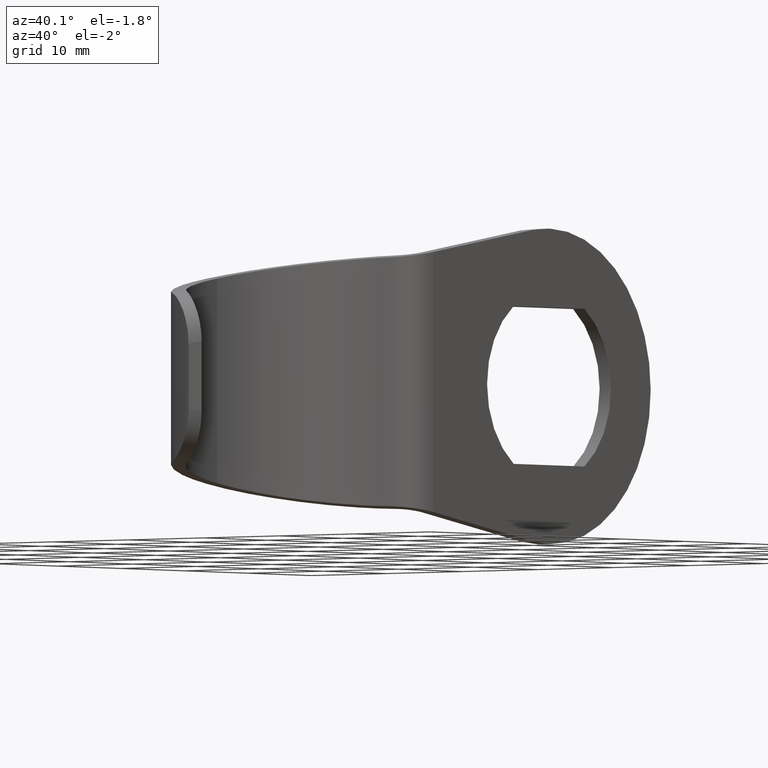
[diagram: clean part render]
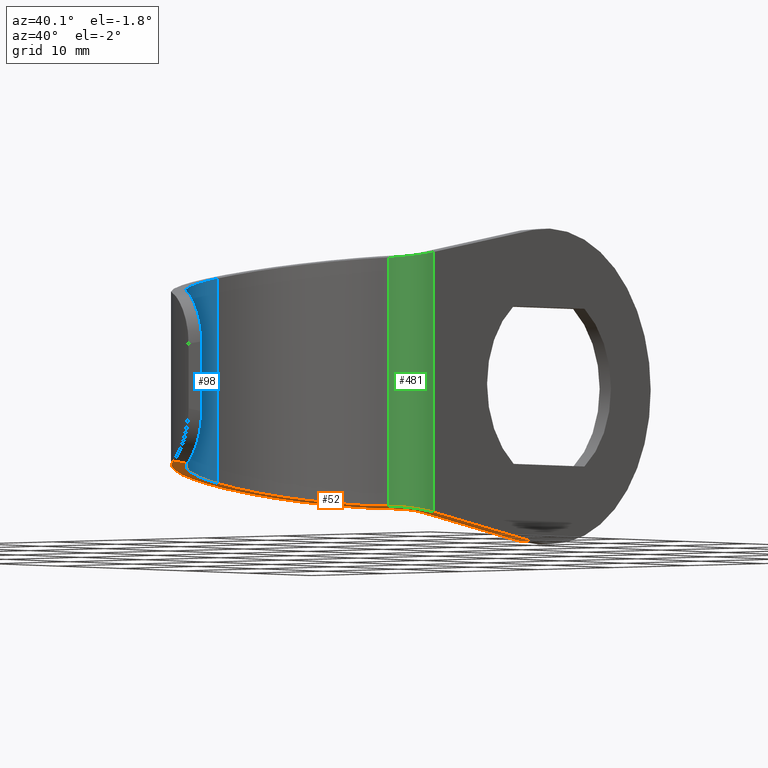
[diagram: same view with three faces highlighted in distinct colors, each labeled with its STEP entity id]
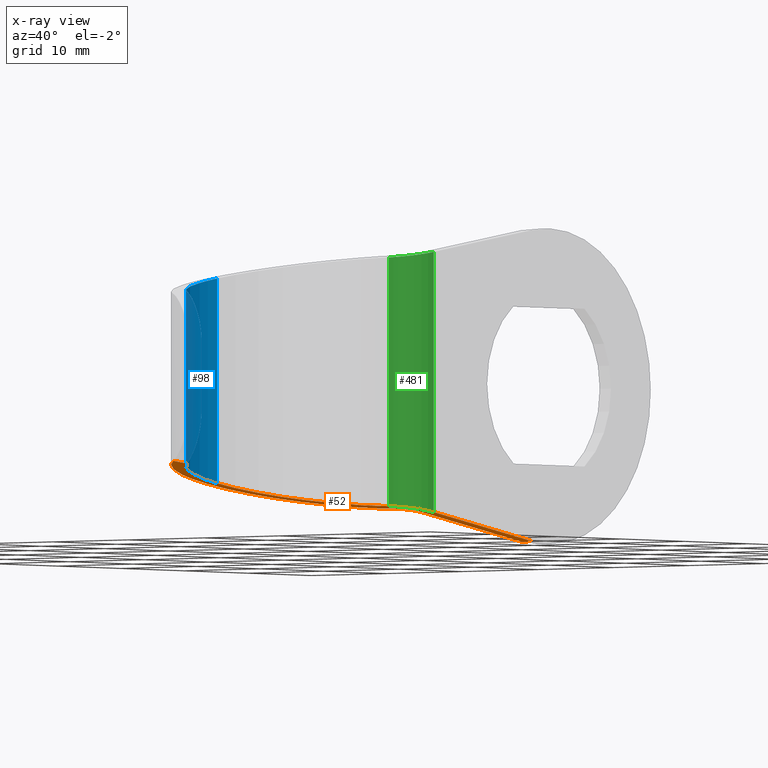
[diagram: x-ray of the same camera — body ghosted, the three highlighted faces saturated]
A machine part, auxiliary view with three faces highlighted in distinct colors.
The next image is the same camera in x-ray (body ghosted, the three faces saturated) — at least one of them is partly hidden behind the body in this view.
Their STEP definitions:

[orange] entity #52 — the highlighted planar face has unit normal (0, -0.1645, -0.9864).
#1 = VECTOR ( 'NONE', #688, 1000.000000000000000 ) ;
#4 = EDGE_CURVE ( 'NONE', #697, #576, #669, .T. ) ;
#12 = EDGE_LOOP ( 'NONE', ( #106, #665, #208, #408, #484, #337, #42, #143, #102, #590 ) ) ;
#27 = CARTESIAN_POINT ( 'NONE',  ( -1.984335818890923700, 13.35336710553417200, -12.61000297431061100 ) ) ;
#35 = CARTESIAN_POINT ( 'NONE',  ( -8.920456233523886200, 12.32264638362781300, -12.43805731057212300 ) ) ;
#40 = CARTESIAN_POINT ( 'NONE',  ( -11.31845518809903500, -15.70927592412958300, -7.761749379013025400 ) ) ;
#41 = CARTESIAN_POINT ( 'NONE',  ( -15.00000000000002500, 0.0000000000000000000, -10.38238348310827800 ) ) ;
#42 = ORIENTED_EDGE ( 'NONE', *, *, #703, .T. ) ;
#47 = CARTESIAN_POINT ( 'NONE',  ( -1.984335818890923700, 13.35336710553417200, -12.61000297431061100 ) ) ;
#52 = ADVANCED_FACE ( 'NONE', ( #608 ), #446, .T. ) ;
#57 =( BOUNDED_CURVE ( )  B_SPLINE_CURVE ( 3, ( #156, #392, #658, #27 ),
 .UNSPECIFIED., .F., .T. ) 
 B_SPLINE_CURVE_WITH_KNOTS ( ( 4, 4 ),
 ( 1.570796326794895700, 2.994070313583864000 ),
 .UNSPECIFIED. ) 
 CURVE ( )  GEOMETRIC_REPRESENTATION_ITEM ( )  RATIONAL_B_SPLINE_CURVE ( ( 1.000000000000000000, 0.8381958751871453300, 0.8381958751871453300, 1.000000000000000000 ) ) 
 REPRESENTATION_ITEM ( '' )  );
#89 = DIRECTION ( 'NONE',  ( 0.0000000000000000000, 0.9863692575464607600, -0.1645469166142101700 ) ) ;
#90 = EDGE_CURVE ( 'NONE', #261, #297, #142, .T. ) ;
#91 = LINE ( 'NONE', #644, #687 ) ;
#102 = ORIENTED_EDGE ( 'NONE', *, *, #364, .T. ) ;
#104 = CARTESIAN_POINT ( 'NONE',  ( -15.00000000000002500, 0.0000000000000000000, -10.38238348310827800 ) ) ;
#106 = ORIENTED_EDGE ( 'NONE', *, *, #4, .F. ) ;
#108 = CARTESIAN_POINT ( 'NONE',  ( -15.00000000000002300, 32.36721305702062100, -15.78190812074337000 ) ) ;
#111 =( BOUNDED_CURVE ( )  B_SPLINE_CURVE ( 3, ( #660, #611, #215, #616 ),
 .UNSPECIFIED., .F., .F. ) 
 B_SPLINE_CURVE_WITH_KNOTS ( ( 4, 4 ),
 ( 1.570796326794896600, 2.993998548937665900 ),
 .UNSPECIFIED. ) 
 CURVE ( )  GEOMETRIC_REPRESENTATION_ITEM ( )  RATIONAL_B_SPLINE_CURVE ( ( 1.000000000000000000, 0.8382114974115488800, 0.8382114974115488800, 1.000000000000000000 ) ) 
 REPRESENTATION_ITEM ( '' )  );
#113 = LINE ( 'NONE', #40, #423 ) ;
#142 =( BOUNDED_CURVE ( )  B_SPLINE_CURVE ( 3, ( #456, #620, #186, #104 ),
 .UNSPECIFIED., .F., .F. ) 
 B_SPLINE_CURVE_WITH_KNOTS ( ( 4, 4 ),
 ( 3.839370375923106600, 4.712388980384689700 ),
 .UNSPECIFIED. ) 
 CURVE ( )  GEOMETRIC_REPRESENTATION_ITEM ( )  RATIONAL_B_SPLINE_CURVE ( ( 1.000000000000000000, 0.9374886493068308500, 0.9374886493068308500, 1.000000000000000000 ) ) 
 REPRESENTATION_ITEM ( '' )  );
#143 = ORIENTED_EDGE ( 'NONE', *, *, #383, .F. ) ;
#150 = EDGE_CURVE ( 'NONE', #318, #308, #91, .T. ) ;
#153 = DIRECTION ( 'NONE',  ( 0.0000000000000000000, 0.9863692575464607600, -0.1645469166142101700 ) ) ;
#156 = CARTESIAN_POINT ( 'NONE',  ( 1.001206748977360400, 16.81535115381116800, -13.18753395082193900 ) ) ;
#159 = CARTESIAN_POINT ( 'NONE',  ( -2.205882338001806900, 14.83691622645664400, -12.85748983749685300 ) ) ;
#162 = CARTESIAN_POINT ( 'NONE',  ( -11.92602822276886900, -7.419471597220776500, -9.144661235695387800 ) ) ;
#165 = CARTESIAN_POINT ( 'NONE',  ( -0.4999999830687073000, 32.36721305702062100, -15.78190812074337000 ) ) ;
#186 = CARTESIAN_POINT ( 'NONE',  ( -15.00000000000002500, -4.509693660318292900, -9.630072742477684900 ) ) ;
#192 = CARTESIAN_POINT ( 'NONE',  ( 1.001206748977360400, 16.81535115381116800, -13.18753395082193900 ) ) ;
#208 = ORIENTED_EDGE ( 'NONE', *, *, #90, .T. ) ;
#214 = CARTESIAN_POINT ( 'NONE',  ( -15.00000000000002300, -14.28109305101088500, -8.000000000000000000 ) ) ;
#215 = CARTESIAN_POINT ( 'NONE',  ( -1.178381815577954200, 14.98968013103816000, -12.88297403550538100 ) ) ;
#224 = CARTESIAN_POINT ( 'NONE',  ( -13.50000006286279900, 0.0000000000000000000, -10.38238348310827800 ) ) ;
#261 = VERTEX_POINT ( 'NONE', #331 ) ;
#268 = VERTEX_POINT ( 'NONE', #317 ) ;
#269 = VECTOR ( 'NONE', #89, 1000.000000000000000 ) ;
#270 = VERTEX_POINT ( 'NONE', #347 ) ;
#276 =( BOUNDED_CURVE ( )  B_SPLINE_CURVE ( 3, ( #628, #729, #35, #450 ),
 .UNSPECIFIED., .F., .F. ) 
 B_SPLINE_CURVE_WITH_KNOTS ( ( 4, 4 ),
 ( 4.712388980384689700, 6.135662967173656700 ),
 .UNSPECIFIED. ) 
 CURVE ( )  GEOMETRIC_REPRESENTATION_ITEM ( )  RATIONAL_B_SPLINE_CURVE ( ( 1.000000000000000000, 0.8381958751871456700, 0.8381958751871456700, 1.000000000000000000 ) ) 
 REPRESENTATION_ITEM ( '' )  );
#286 = EDGE_CURVE ( 'NONE', #576, #605, #276, .T. ) ;
#297 = VERTEX_POINT ( 'NONE', #41 ) ;
#302 = CARTESIAN_POINT ( 'NONE',  ( -13.50000006286279900, 0.0000000000000000000, -10.38238348310827800 ) ) ;
#308 = VERTEX_POINT ( 'NONE', #477 ) ;
#317 = CARTESIAN_POINT ( 'NONE',  ( -2.205882338001806900, 14.83691622645664400, -12.85748983749685300 ) ) ;
#318 = VERTEX_POINT ( 'NONE', #165 ) ;
#331 = CARTESIAN_POINT ( 'NONE',  ( -9.637746092784999200, -11.49407892138418500, -8.464931949248944300 ) ) ;
#333 = AXIS2_PLACEMENT_3D ( 'NONE', #214, #551, #153 ) ;
#337 = ORIENTED_EDGE ( 'NONE', *, *, #150, .F. ) ;
#347 = CARTESIAN_POINT ( 'NONE',  ( 1.001206748977360400, 32.36721305702062100, -15.78190812074337000 ) ) ;
#364 = EDGE_CURVE ( 'NONE', #741, #605, #57, .T. ) ;
#383 = EDGE_CURVE ( 'NONE', #741, #270, #417, .T. ) ;
#392 = CARTESIAN_POINT ( 'NONE',  ( 1.001206748977361900, 14.99735114981560900, -12.88425372105666800 ) ) ;
#408 = ORIENTED_EDGE ( 'NONE', *, *, #426, .T. ) ;
#417 = LINE ( 'NONE', #718, #269 ) ;
#423 = VECTOR ( 'NONE', #506, 1000.000000000000100 ) ;
#426 = EDGE_CURVE ( 'NONE', #297, #268, #471, .T. ) ;
#446 = PLANE ( 'NONE',  #333 ) ;
#448 = LINE ( 'NONE', #108, #1 ) ;
#450 = CARTESIAN_POINT ( 'NONE',  ( -1.984335818890923700, 13.35336710553417200, -12.61000297431061100 ) ) ;
#456 = CARTESIAN_POINT ( 'NONE',  ( -9.637746092784999200, -11.49407892138418500, -8.464931949248944300 ) ) ;
#466 = EDGE_CURVE ( 'NONE', #697, #261, #113, .T. ) ;
#471 =( BOUNDED_CURVE ( )  B_SPLINE_CURVE ( 3, ( #577, #574, #632, #159 ),
 .UNSPECIFIED., .F., .T. ) 
 B_SPLINE_CURVE_WITH_KNOTS ( ( 4, 4 ),
 ( 4.712388980384689700, 6.135591202527459500 ),
 .UNSPECIFIED. ) 
 CURVE ( )  GEOMETRIC_REPRESENTATION_ITEM ( )  RATIONAL_B_SPLINE_CURVE ( ( 1.000000000000000000, 0.8382114974115488800, 0.8382114974115488800, 1.000000000000000000 ) ) 
 REPRESENTATION_ITEM ( '' )  );
#477 = CARTESIAN_POINT ( 'NONE',  ( -0.4999999830687073000, 16.81517172331753300, -13.18750401808199700 ) ) ;
#484 = ORIENTED_EDGE ( 'NONE', *, *, #604, .F. ) ;
#503 = CARTESIAN_POINT ( 'NONE',  ( -9.049220486844756600, -10.01806419812554000, -8.711161918128469800 ) ) ;
#506 = DIRECTION ( 'NONE',  ( -0.3660022587492334800, -0.9179290029304906200, 0.1531296580336233800 ) ) ;
#551 = DIRECTION ( 'NONE',  ( 0.0000000000000000000, -0.1645469166142101700, -0.9863692575464607600 ) ) ;
#561 = CARTESIAN_POINT ( 'NONE',  ( -13.50000006286279900, -3.876687536409120700, -9.735671335591035800 ) ) ;
#574 = CARTESIAN_POINT ( 'NONE',  ( -15.00000000000002800, 7.790959186421821900, -11.68207759034527600 ) ) ;
#576 = VERTEX_POINT ( 'NONE', #302 ) ;
#577 = CARTESIAN_POINT ( 'NONE',  ( -15.00000000000002500, 0.0000000000000000000, -10.38238348310827800 ) ) ;
#590 = ORIENTED_EDGE ( 'NONE', *, *, #286, .F. ) ;
#604 = EDGE_CURVE ( 'NONE', #308, #268, #111, .T. ) ;
#605 = VERTEX_POINT ( 'NONE', #47 ) ;
#608 = FACE_OUTER_BOUND ( 'NONE', #12, .T. ) ;
#611 = CARTESIAN_POINT ( 'NONE',  ( -0.4999999830687073500, 15.77637716512795600, -13.01421147045039800 ) ) ;
#616 = CARTESIAN_POINT ( 'NONE',  ( -2.205882338001806900, 14.83691622645664400, -12.85748983749685300 ) ) ;
#620 = CARTESIAN_POINT ( 'NONE',  ( -13.09339774898261400, -8.596526757758205400, -8.948303942653785400 ) ) ;
#628 = CARTESIAN_POINT ( 'NONE',  ( -13.50000006286279900, 0.0000000000000000000, -10.38238348310827800 ) ) ;
#632 = CARTESIAN_POINT ( 'NONE',  ( -9.912136256180685800, 13.69118694209526200, -12.66635835243290700 ) ) ;
#644 = CARTESIAN_POINT ( 'NONE',  ( -0.4999999830687073000, 12.07792248822464600, -12.39723227258323500 ) ) ;
#651 = CARTESIAN_POINT ( 'NONE',  ( -9.049220486844756600, -10.01806419812554000, -8.711161918128469800 ) ) ;
#658 = CARTESIAN_POINT ( 'NONE',  ( -0.1860823864337367600, 13.62059099515445100, -12.65458147951671500 ) ) ;
#660 = CARTESIAN_POINT ( 'NONE',  ( -0.4999999830687073000, 16.81517172331753300, -13.18750401808199700 ) ) ;
#665 = ORIENTED_EDGE ( 'NONE', *, *, #466, .T. ) ;
#669 =( BOUNDED_CURVE ( )  B_SPLINE_CURVE ( 3, ( #503, #162, #561, #224 ),
 .UNSPECIFIED., .F., .T. ) 
 B_SPLINE_CURVE_WITH_KNOTS ( ( 4, 4 ),
 ( 3.876222644386103400, 4.712388980384689700 ),
 .UNSPECIFIED. ) 
 CURVE ( )  GEOMETRIC_REPRESENTATION_ITEM ( )  RATIONAL_B_SPLINE_CURVE ( ( 1.000000000000000000, 0.9425792471086884600, 0.9425792471086884600, 1.000000000000000000 ) ) 
 REPRESENTATION_ITEM ( '' )  );
#687 = VECTOR ( 'NONE', #701, 1000.000000000000000 ) ;
#688 = DIRECTION ( 'NONE',  ( 1.000000000000000000, -0.0000000000000000000, -0.0000000000000000000 ) ) ;
#697 = VERTEX_POINT ( 'NONE', #651 ) ;
#701 = DIRECTION ( 'NONE',  ( 0.0000000000000000000, -0.9863692575464607600, 0.1645469166142101700 ) ) ;
#703 = EDGE_CURVE ( 'NONE', #318, #270, #448, .T. ) ;
#718 = CARTESIAN_POINT ( 'NONE',  ( 1.001206748977360400, -14.28109305101088500, -8.000000000000000000 ) ) ;
#729 = CARTESIAN_POINT ( 'NONE',  ( -13.50000006286280100, 7.012285762349901800, -11.55217866050719700 ) ) ;
#741 = VERTEX_POINT ( 'NONE', #192 ) ;

[blue] entity #98 — the highlighted cylindrical surface (partial cylindrical patch) has radius 13.5 mm, axis along (-0, -0, -1).
#4 = EDGE_CURVE ( 'NONE', #697, #576, #669, .T. ) ;
#13 = CARTESIAN_POINT ( 'NONE',  ( -7.831030752843139100, -11.00038111497593400, -8.320236309399598800 ) ) ;
#21 = VERTEX_POINT ( 'NONE', #500 ) ;
#51 = CARTESIAN_POINT ( 'NONE',  ( -4.999999986226216100, -12.53993627715202800, -3.855609471484018800 ) ) ;
#55 = ORIENTED_EDGE ( 'NONE', *, *, #4, .T. ) ;
#56 = CARTESIAN_POINT ( 'NONE',  ( -6.070704685685230500, -12.06007120537907600, 6.809031301627409300 ) ) ;
#75 = CARTESIAN_POINT ( 'NONE',  ( -5.443335865328828400, -12.35452675363955100, -5.719764634765367900 ) ) ;
#97 = CARTESIAN_POINT ( 'NONE',  ( -5.444078822227735900, -12.35419488419227500, 5.721221279957527300 ) ) ;
#98 = ADVANCED_FACE ( 'NONE', ( #427 ), #550, .F. ) ;
#103 = CARTESIAN_POINT ( 'NONE',  ( -9.049220486844756600, -10.01806419812554000, -8.711161918128469800 ) ) ;
#107 = CARTESIAN_POINT ( 'NONE',  ( 0.0000000000000000000, 0.0000000000000000000, 16.00000000000000000 ) ) ;
#119 = CARTESIAN_POINT ( 'NONE',  ( -6.676572810994271000, -11.73628603075249400, 7.495914837085221500 ) ) ;
#126 = EDGE_CURVE ( 'NONE', #170, #697, #282, .T. ) ;
#130 = CARTESIAN_POINT ( 'NONE',  ( -5.224128960322223800, -12.44880368770803800, -5.118682594537248500 ) ) ;
#133 = CARTESIAN_POINT ( 'NONE',  ( -6.669442557162417600, -11.74035838370241800, -7.489206859803028100 ) ) ;
#138 = EDGE_CURVE ( 'NONE', #310, #606, #494, .T. ) ;
#162 = CARTESIAN_POINT ( 'NONE',  ( -11.92602822276886900, -7.419471597220776500, -9.144661235695387800 ) ) ;
#170 = VERTEX_POINT ( 'NONE', #362 ) ;
#188 = CARTESIAN_POINT ( 'NONE',  ( -9.049220486844761900, -10.01806419812553500, 8.711161918128475200 ) ) ;
#194 = CARTESIAN_POINT ( 'NONE',  ( -13.50000006286279900, -3.876687536409117600, 9.735671335591039400 ) ) ;
#202 = CARTESIAN_POINT ( 'NONE',  ( -6.069155970377289900, -12.06083902616860500, -6.806876091736331300 ) ) ;
#212 = EDGE_CURVE ( 'NONE', #606, #576, #217, .T. ) ;
#216 = EDGE_CURVE ( 'NONE', #310, #21, #363, .T. ) ;
#217 = LINE ( 'NONE', #524, #242 ) ;
#224 = CARTESIAN_POINT ( 'NONE',  ( -13.50000006286279900, 0.0000000000000000000, -10.38238348310827800 ) ) ;
#236 = CARTESIAN_POINT ( 'NONE',  ( -4.999999986226225900, -12.53993627715202300, 3.530293064388505100 ) ) ;
#238 = CARTESIAN_POINT ( 'NONE',  ( -5.029093018165823100, -12.52844599679121300, 4.181227890152497300 ) ) ;
#242 = VECTOR ( 'NONE', #580, 1000.000000000000000 ) ;
#247 = DIRECTION ( 'NONE',  ( -1.000000000000000000, 0.0000000000000000000, 0.0000000000000000000 ) ) ;
#251 = CARTESIAN_POINT ( 'NONE',  ( -8.809403236190938500, -10.23468880092269200, 8.675024426838733800 ) ) ;
#264 = ORIENTED_EDGE ( 'NONE', *, *, #714, .T. ) ;
#275 = ORIENTED_EDGE ( 'NONE', *, *, #138, .F. ) ;
#282 = B_SPLINE_CURVE_WITH_KNOTS ( 'NONE', 3,
 ( #698, #51, #587, #312, #130, #75, #646, #594, #202, #535, #133, #487, #422, #13, #666, #502, #617, #103 ),
 .UNSPECIFIED., .F., .F.,
 ( 4, 2, 2, 2, 2, 2, 2, 2, 4 ),
 ( 2.168404344971008900E-018, 0.0009620872368226835700, 0.001924174473645365000, 0.002886261710468046100, 0.003848348947290727800, 0.004810436184113409800, 0.005772523420936088000, 0.006734610657758767800, 0.007696697894581447700 ),
 .UNSPECIFIED. ) ;
#301 = CARTESIAN_POINT ( 'NONE',  ( -7.835891642876994500, -10.99698461569209400, 8.322862962820087400 ) ) ;
#302 = CARTESIAN_POINT ( 'NONE',  ( -13.50000006286279900, 0.0000000000000000000, -10.38238348310827800 ) ) ;
#310 = VERTEX_POINT ( 'NONE', #188 ) ;
#312 = CARTESIAN_POINT ( 'NONE',  ( -5.140076876850799600, -12.48331820437842800, -4.805819364911502400 ) ) ;
#322 = CARTESIAN_POINT ( 'NONE',  ( -4.999999986226225900, -12.53993627715202300, 16.00000000000000000 ) ) ;
#348 = CARTESIAN_POINT ( 'NONE',  ( -5.580751233720877600, -12.29370281798513400, 6.013116622503995100 ) ) ;
#354 = CARTESIAN_POINT ( 'NONE',  ( -13.50000006286279900, 0.0000000000000000000, 10.38238348310828100 ) ) ;
#355 = CARTESIAN_POINT ( 'NONE',  ( -9.049220486844761900, -10.01806419812553500, 8.711161918128475200 ) ) ;
#362 = CARTESIAN_POINT ( 'NONE',  ( -4.999999986226225900, -12.53993627715202300, -3.530293064388508700 ) ) ;
#363 = B_SPLINE_CURVE_WITH_KNOTS ( 'NONE', 3,
 ( #355, #251, #751, #690, #301, #637, #578, #119, #473, #56, #405, #348, #97, #686, #633, #238, #575, #236 ),
 .UNSPECIFIED., .F., .F.,
 ( 4, 2, 2, 2, 2, 2, 2, 2, 4 ),
 ( 0.0000000000000000000, 0.0009622189405970981800, 0.001924437881194196400, 0.002886656821791292600, 0.003848875762388387500, 0.004811094702985482500, 0.005773313643582576500, 0.006735532584179671500, 0.007697751524776766400 ),
 .UNSPECIFIED. ) ;
#366 = CARTESIAN_POINT ( 'NONE',  ( -9.049220486844761900, -10.01806419812553500, 8.711161918128475200 ) ) ;
#405 = CARTESIAN_POINT ( 'NONE',  ( -5.893859483115034200, -12.14670052742339700, 6.555801904307212900 ) ) ;
#414 = EDGE_LOOP ( 'NONE', ( #532, #275, #619, #264, #454, #55 ) ) ;
#420 = CARTESIAN_POINT ( 'NONE',  ( -11.92602822276887100, -7.419471597220770300, 9.144661235695394900 ) ) ;
#422 = CARTESIAN_POINT ( 'NONE',  ( -7.353369734507458200, -11.32525411963562700, -8.039474509241323100 ) ) ;
#427 = FACE_OUTER_BOUND ( 'NONE', #414, .T. ) ;
#432 = VECTOR ( 'NONE', #457, 1000.000000000000000 ) ;
#454 = ORIENTED_EDGE ( 'NONE', *, *, #126, .T. ) ;
#457 = DIRECTION ( 'NONE',  ( -0.0000000000000000000, -0.0000000000000000000, -1.000000000000000000 ) ) ;
#473 = CARTESIAN_POINT ( 'NONE',  ( -6.461924141218514000, -11.85505416490163100, 7.279482438224151000 ) ) ;
#487 = CARTESIAN_POINT ( 'NONE',  ( -7.116149124379056400, -11.47509915602737400, -7.870830597120669100 ) ) ;
#494 =( BOUNDED_CURVE ( )  B_SPLINE_CURVE ( 3, ( #366, #420, #194, #520 ),
 .UNSPECIFIED., .F., .T. ) 
 B_SPLINE_CURVE_WITH_KNOTS ( ( 4, 4 ),
 ( 0.7346299907963106400, 1.570796326794896600 ),
 .UNSPECIFIED. ) 
 CURVE ( )  GEOMETRIC_REPRESENTATION_ITEM ( )  RATIONAL_B_SPLINE_CURVE ( ( 1.000000000000000000, 0.9425792471086885700, 0.9425792471086885700, 1.000000000000000000 ) ) 
 REPRESENTATION_ITEM ( '' )  );
#500 = CARTESIAN_POINT ( 'NONE',  ( -4.999999986226225900, -12.53993627715202300, 3.530293064388505100 ) ) ;
#502 = CARTESIAN_POINT ( 'NONE',  ( -8.564318355230460300, -10.44027857123895400, -8.612592168467143600 ) ) ;
#503 = CARTESIAN_POINT ( 'NONE',  ( -9.049220486844756600, -10.01806419812554000, -8.711161918128469800 ) ) ;
#520 = CARTESIAN_POINT ( 'NONE',  ( -13.50000006286279900, 0.0000000000000000000, 10.38238348310828100 ) ) ;
#524 = CARTESIAN_POINT ( 'NONE',  ( -13.50000006286279900, 0.0000000000000000000, 16.00000000000000000 ) ) ;
#532 = ORIENTED_EDGE ( 'NONE', *, *, #212, .F. ) ;
#535 = CARTESIAN_POINT ( 'NONE',  ( -6.459283972483454800, -11.85648104501231400, -7.276597284324294500 ) ) ;
#550 = CYLINDRICAL_SURFACE ( 'NONE', #603, 13.50000006286279900 ) ;
#561 = CARTESIAN_POINT ( 'NONE',  ( -13.50000006286279900, -3.876687536409120700, -9.735671335591035800 ) ) ;
#567 = DIRECTION ( 'NONE',  ( -0.0000000000000000000, -0.0000000000000000000, -1.000000000000000000 ) ) ;
#575 = CARTESIAN_POINT ( 'NONE',  ( -4.999999986226218800, -12.53993627715203000, 3.855695459267503000 ) ) ;
#576 = VERTEX_POINT ( 'NONE', #302 ) ;
#578 = CARTESIAN_POINT ( 'NONE',  ( -7.121660889244481900, -11.47165988315333400, 7.874904986610348900 ) ) ;
#580 = DIRECTION ( 'NONE',  ( -0.0000000000000000000, -0.0000000000000000000, -1.000000000000000000 ) ) ;
#587 = CARTESIAN_POINT ( 'NONE',  ( -5.028573508756119600, -12.52865005332729900, -4.175692491400835300 ) ) ;
#594 = CARTESIAN_POINT ( 'NONE',  ( -5.888738701890385800, -12.14917326427283100, -6.547933291098393800 ) ) ;
#603 = AXIS2_PLACEMENT_3D ( 'NONE', #107, #567, #247 ) ;
#606 = VERTEX_POINT ( 'NONE', #354 ) ;
#617 = CARTESIAN_POINT ( 'NONE',  ( -8.809402029600873300, -10.23468989082382800, -8.675024245020550100 ) ) ;
#619 = ORIENTED_EDGE ( 'NONE', *, *, #216, .T. ) ;
#633 = CARTESIAN_POINT ( 'NONE',  ( -5.142301994664181000, -12.48240625342528500, 4.815730324636414000 ) ) ;
#635 = LINE ( 'NONE', #322, #432 ) ;
#637 = CARTESIAN_POINT ( 'NONE',  ( -7.354206213949167300, -11.32477458669219800, 8.040193971251440500 ) ) ;
#646 = CARTESIAN_POINT ( 'NONE',  ( -5.576934454798730700, -12.29542421355775000, -6.005465245692698200 ) ) ;
#651 = CARTESIAN_POINT ( 'NONE',  ( -9.049220486844756600, -10.01806419812554000, -8.711161918128469800 ) ) ;
#666 = CARTESIAN_POINT ( 'NONE',  ( -8.073836588768861200, -10.82405322754215900, -8.434588310839409100 ) ) ;
#669 =( BOUNDED_CURVE ( )  B_SPLINE_CURVE ( 3, ( #503, #162, #561, #224 ),
 .UNSPECIFIED., .F., .T. ) 
 B_SPLINE_CURVE_WITH_KNOTS ( ( 4, 4 ),
 ( 3.876222644386103400, 4.712388980384689700 ),
 .UNSPECIFIED. ) 
 CURVE ( )  GEOMETRIC_REPRESENTATION_ITEM ( )  RATIONAL_B_SPLINE_CURVE ( ( 1.000000000000000000, 0.9425792471086884600, 0.9425792471086884600, 1.000000000000000000 ) ) 
 REPRESENTATION_ITEM ( '' )  );
#686 = CARTESIAN_POINT ( 'NONE',  ( -5.225738622194154600, -12.44812360605965500, 5.123670781606068500 ) ) ;
#690 = CARTESIAN_POINT ( 'NONE',  ( -8.081728114449072500, -10.81808049102340700, 8.437842248507600100 ) ) ;
#697 = VERTEX_POINT ( 'NONE', #651 ) ;
#698 = CARTESIAN_POINT ( 'NONE',  ( -4.999999986226225900, -12.53993627715202300, -3.530293064388508700 ) ) ;
#714 = EDGE_CURVE ( 'NONE', #21, #170, #635, .T. ) ;
#751 = CARTESIAN_POINT ( 'NONE',  ( -8.567512428629971300, -10.43757278352629200, 8.613352373462728200 ) ) ;

[green] entity #481 — the highlighted cylindrical surface (edge-blend (fillet) strip) has radius 3.5 mm, axis along (-0, -0, -1).
#17 = EDGE_CURVE ( 'NONE', #589, #518, #416, .T. ) ;
#26 = DIRECTION ( 'NONE',  ( -0.0000000000000000000, -0.0000000000000000000, -1.000000000000000000 ) ) ;
#27 = CARTESIAN_POINT ( 'NONE',  ( -1.984335818890923700, 13.35336710553417200, -12.61000297431061100 ) ) ;
#29 = CARTESIAN_POINT ( 'NONE',  ( -1.984335818890923700, 13.35336710553417200, 12.61000297431061400 ) ) ;
#47 = CARTESIAN_POINT ( 'NONE',  ( -1.984335818890923700, 13.35336710553417200, -12.61000297431061100 ) ) ;
#48 = DIRECTION ( 'NONE',  ( -0.0000000000000000000, -0.0000000000000000000, -1.000000000000000000 ) ) ;
#57 =( BOUNDED_CURVE ( )  B_SPLINE_CURVE ( 3, ( #156, #392, #658, #27 ),
 .UNSPECIFIED., .F., .T. ) 
 B_SPLINE_CURVE_WITH_KNOTS ( ( 4, 4 ),
 ( 1.570796326794895700, 2.994070313583864000 ),
 .UNSPECIFIED. ) 
 CURVE ( )  GEOMETRIC_REPRESENTATION_ITEM ( )  RATIONAL_B_SPLINE_CURVE ( ( 1.000000000000000000, 0.8381958751871453300, 0.8381958751871453300, 1.000000000000000000 ) ) 
 REPRESENTATION_ITEM ( '' )  );
#154 = CARTESIAN_POINT ( 'NONE',  ( 1.001206748977360400, 16.81535115381116800, 13.18753395082193900 ) ) ;
#156 = CARTESIAN_POINT ( 'NONE',  ( 1.001206748977360400, 16.81535115381116800, -13.18753395082193900 ) ) ;
#192 = CARTESIAN_POINT ( 'NONE',  ( 1.001206748977360400, 16.81535115381116800, -13.18753395082193900 ) ) ;
#195 = ORIENTED_EDGE ( 'NONE', *, *, #17, .T. ) ;
#204 = VECTOR ( 'NONE', #26, 1000.000000000000000 ) ;
#225 = DIRECTION ( 'NONE',  ( -0.0000000000000000000, -0.0000000000000000000, -1.000000000000000000 ) ) ;
#274 = FACE_OUTER_BOUND ( 'NONE', #667, .T. ) ;
#281 = CARTESIAN_POINT ( 'NONE',  ( -2.498793251022625400, 16.81535115381116400, 16.00000000000000000 ) ) ;
#293 = CARTESIAN_POINT ( 'NONE',  ( 1.001206748977360400, 16.81535115381116400, 16.00000000000000000 ) ) ;
#324 = EDGE_CURVE ( 'NONE', #589, #741, #492, .T. ) ;
#327 = CARTESIAN_POINT ( 'NONE',  ( -1.984335818890923700, 13.35336710553417200, 16.00000000000000000 ) ) ;
#364 = EDGE_CURVE ( 'NONE', #741, #605, #57, .T. ) ;
#384 = CYLINDRICAL_SURFACE ( 'NONE', #483, 3.499999999999985800 ) ;
#385 = CARTESIAN_POINT ( 'NONE',  ( 1.001206748977362200, 14.99735114981560900, 12.88425372105666800 ) ) ;
#391 = CARTESIAN_POINT ( 'NONE',  ( -0.1860823864337354200, 13.62059099515445300, 12.65458147951671500 ) ) ;
#392 = CARTESIAN_POINT ( 'NONE',  ( 1.001206748977361900, 14.99735114981560900, -12.88425372105666800 ) ) ;
#406 = ORIENTED_EDGE ( 'NONE', *, *, #364, .F. ) ;
#416 =( BOUNDED_CURVE ( )  B_SPLINE_CURVE ( 3, ( #443, #385, #391, #29 ),
 .UNSPECIFIED., .F., .T. ) 
 B_SPLINE_CURVE_WITH_KNOTS ( ( 4, 4 ),
 ( 4.712388980384688800, 6.135662967173656700 ),
 .UNSPECIFIED. ) 
 CURVE ( )  GEOMETRIC_REPRESENTATION_ITEM ( )  RATIONAL_B_SPLINE_CURVE ( ( 1.000000000000000000, 0.8381958751871453300, 0.8381958751871453300, 1.000000000000000000 ) ) 
 REPRESENTATION_ITEM ( '' )  );
#443 = CARTESIAN_POINT ( 'NONE',  ( 1.001206748977360400, 16.81535115381116800, 13.18753395082193900 ) ) ;
#455 = DIRECTION ( 'NONE',  ( -1.000000000000000000, 0.0000000000000000000, 0.0000000000000000000 ) ) ;
#481 = ADVANCED_FACE ( 'NONE', ( #274 ), #384, .T. ) ;
#483 = AXIS2_PLACEMENT_3D ( 'NONE', #281, #225, #455 ) ;
#492 = LINE ( 'NONE', #293, #602 ) ;
#518 = VERTEX_POINT ( 'NONE', #523 ) ;
#523 = CARTESIAN_POINT ( 'NONE',  ( -1.984335818890923700, 13.35336710553417200, 12.61000297431061400 ) ) ;
#552 = ORIENTED_EDGE ( 'NONE', *, *, #559, .T. ) ;
#559 = EDGE_CURVE ( 'NONE', #518, #605, #649, .T. ) ;
#589 = VERTEX_POINT ( 'NONE', #154 ) ;
#602 = VECTOR ( 'NONE', #48, 1000.000000000000000 ) ;
#605 = VERTEX_POINT ( 'NONE', #47 ) ;
#634 = ORIENTED_EDGE ( 'NONE', *, *, #324, .F. ) ;
#649 = LINE ( 'NONE', #327, #204 ) ;
#658 = CARTESIAN_POINT ( 'NONE',  ( -0.1860823864337367600, 13.62059099515445100, -12.65458147951671500 ) ) ;
#667 = EDGE_LOOP ( 'NONE', ( #406, #634, #195, #552 ) ) ;
#741 = VERTEX_POINT ( 'NONE', #192 ) ;